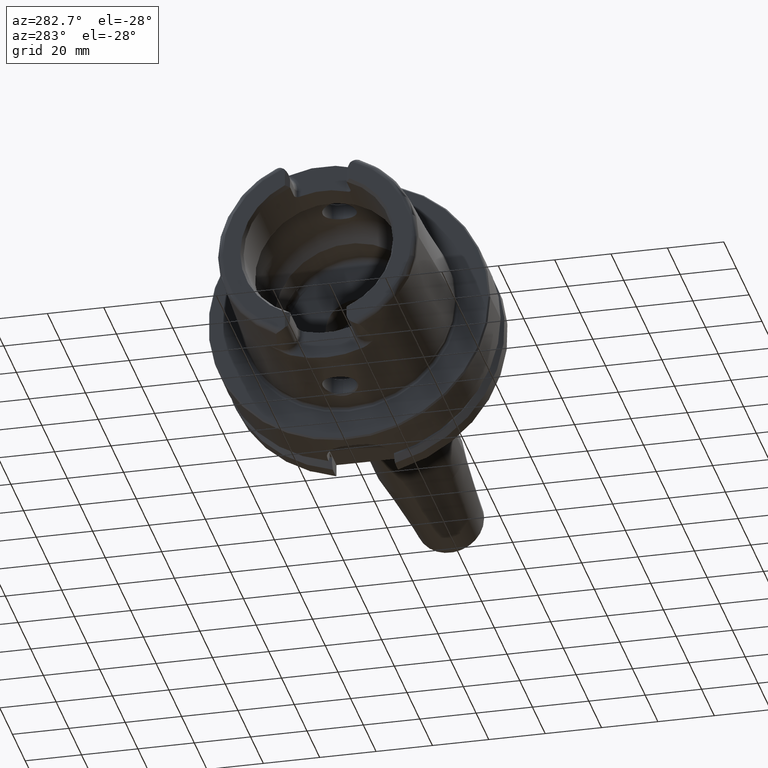
[diagram: clean part render]
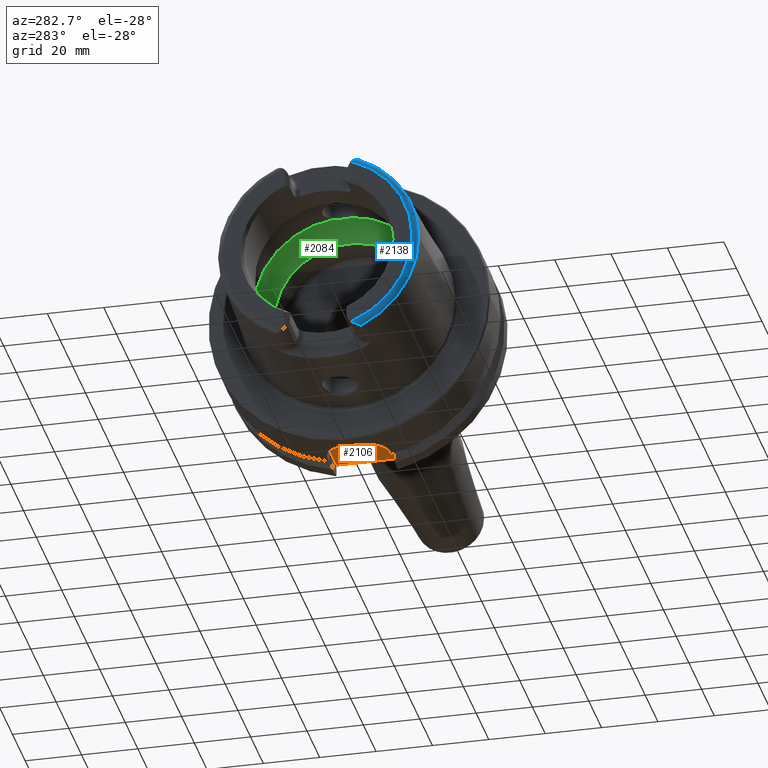
[diagram: same view with three faces highlighted in distinct colors, each labeled with its STEP entity id]
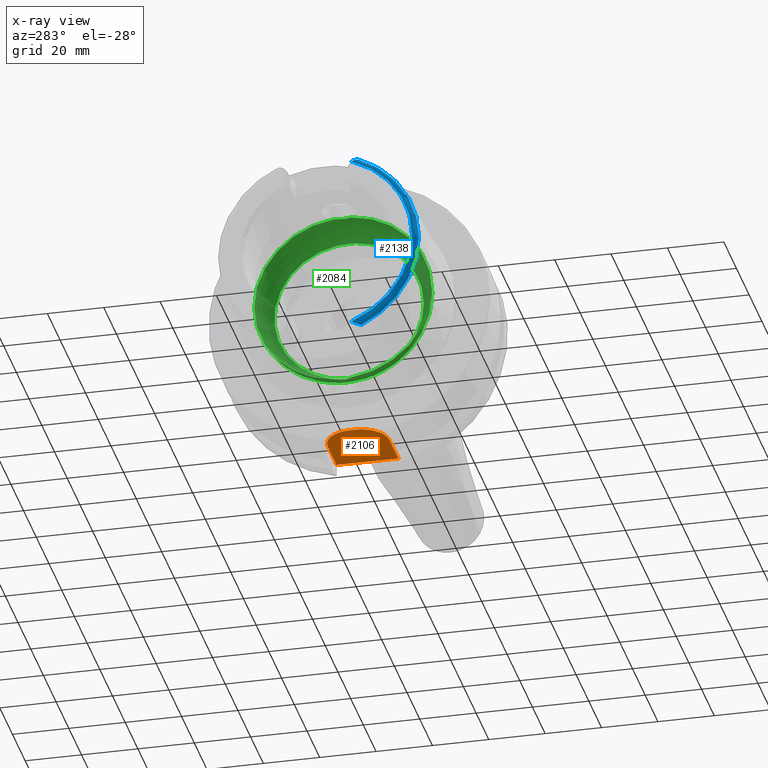
[diagram: x-ray of the same camera — body ghosted, the three highlighted faces saturated]
A machine part, auxiliary view with three faces highlighted in distinct colors.
The next image is the same camera in x-ray (body ghosted, the three faces saturated) — at least one of them is partly hidden behind the body in this view.
Their STEP definitions:

[orange] entity #2106 — the highlighted planar face has unit normal (0, 0, 1).
#120=PLANE('',#2342);
#276=FACE_OUTER_BOUND('',#410,.T.);
#410=EDGE_LOOP('',(#1733,#1734,#1735,#1736,#1737,#1738));
#486=LINE('',#3202,#594);
#542=LINE('',#4283,#650);
#554=LINE('',#4377,#662);
#556=LINE('',#4383,#664);
#594=VECTOR('',#2562,10.);
#650=VECTOR('',#2822,10.);
#662=VECTOR('',#2840,10.);
#664=VECTOR('',#2848,10.);
#771=CIRCLE('',#2337,10.);
#772=CIRCLE('',#2340,10.);
#859=VERTEX_POINT('',#3199);
#860=VERTEX_POINT('',#3201);
#985=VERTEX_POINT('',#4282);
#993=VERTEX_POINT('',#4323);
#994=VERTEX_POINT('',#4325);
#1003=VERTEX_POINT('',#4379);
#1083=EDGE_CURVE('',#859,#860,#486,.T.);
#1250=EDGE_CURVE('',#860,#985,#542,.T.);
#1261=EDGE_CURVE('',#993,#994,#771,.T.);
#1272=EDGE_CURVE('',#994,#859,#554,.T.);
#1273=EDGE_CURVE('',#985,#1003,#772,.T.);
#1275=EDGE_CURVE('',#1003,#993,#556,.T.);
#1733=ORIENTED_EDGE('',*,*,#1275,.F.);
#1734=ORIENTED_EDGE('',*,*,#1273,.F.);
#1735=ORIENTED_EDGE('',*,*,#1250,.F.);
#1736=ORIENTED_EDGE('',*,*,#1083,.F.);
#1737=ORIENTED_EDGE('',*,*,#1272,.F.);
#1738=ORIENTED_EDGE('',*,*,#1261,.F.);
#2106=ADVANCED_FACE('',(#276),#120,.F.);
#2337=AXIS2_PLACEMENT_3D('',#4326,#2831,#2832);
#2340=AXIS2_PLACEMENT_3D('',#4380,#2843,#2844);
#2342=AXIS2_PLACEMENT_3D('',#4384,#2849,#2850);
#2562=DIRECTION('',(0.,1.,0.));
#2822=DIRECTION('',(-1.,-1.58603289232165E-16,0.));
#2831=DIRECTION('center_axis',(0.,0.,1.));
#2832=DIRECTION('ref_axis',(-1.,-2.4980018054066E-16,0.));
#2840=DIRECTION('',(1.,1.58603289232165E-16,0.));
#2843=DIRECTION('center_axis',(0.,0.,1.));
#2844=DIRECTION('ref_axis',(-2.22044604925031E-16,1.,0.));
#2848=DIRECTION('',(0.,-1.,0.));
#2849=DIRECTION('center_axis',(0.,0.,1.));
#2850=DIRECTION('ref_axis',(1.,0.,0.));
#3199=CARTESIAN_POINT('',(29.,-11.,-44.));
#3201=CARTESIAN_POINT('',(29.,11.,-44.));
#3202=CARTESIAN_POINT('',(29.,-5.55111512312578E-16,-44.));
#4282=CARTESIAN_POINT('',(15.,11.,-44.));
#4283=CARTESIAN_POINT('',(29.,11.,-44.));
#4323=CARTESIAN_POINT('',(4.99999999999999,-1.00000000000001,-44.));
#4325=CARTESIAN_POINT('',(15.,-11.,-44.));
#4326=CARTESIAN_POINT('Origin',(15.,-1.,-44.));
#4377=CARTESIAN_POINT('',(15.,-11.,-44.));
#4379=CARTESIAN_POINT('',(4.99999999999999,0.999999999999997,-44.));
#4380=CARTESIAN_POINT('Origin',(15.,1.,-44.));
#4383=CARTESIAN_POINT('',(4.99999999999999,0.999999999999997,-44.));
#4384=CARTESIAN_POINT('Origin',(17.,-1.11022302462516E-15,-44.));

[blue] entity #2138 — the highlighted toroidal blend (fillet) surface has major radius 33.6002 mm and minor (blend) radius 2 mm.
#33=B_SPLINE_CURVE_WITH_KNOTS('',3,(#3332,#3333,#3334,#3335,#3336,#3337,
#3338,#3339,#3340,#3341,#3342,#3343),.UNSPECIFIED.,.F.,.F.,(4,2,2,2,2,4),
(-0.744571126726518,-0.701342830888641,-0.656522678464628,-0.531122919946975,
-0.406784567241786,-0.320835419118986),.UNSPECIFIED.);
#84=B_SPLINE_CURVE_WITH_KNOTS('',3,(#4559,#4560,#4561,#4562,#4563,#4564,
#4565,#4566,#4567,#4568,#4569,#4570),.UNSPECIFIED.,.F.,.F.,(4,2,2,2,2,4),
(-0.330531435638092,-0.267908000768824,-0.159978118105095,-0.0786368985358016,
-0.0319888850382436,0.),.UNSPECIFIED.);
#158=TOROIDAL_SURFACE('',#2401,33.6001839277785,2.);
#308=FACE_OUTER_BOUND('',#442,.T.);
#442=EDGE_LOOP('',(#1882,#1883,#1884,#1885,#1886));
#733=CIRCLE('',#2267,33.6001839277785);
#739=CIRCLE('',#2283,35.5976786130245);
#743=CIRCLE('',#2287,35.5976786130245);
#892=VERTEX_POINT('',#3313);
#893=VERTEX_POINT('',#3315);
#898=VERTEX_POINT('',#3331);
#913=VERTEX_POINT('',#3550);
#914=VERTEX_POINT('',#3552);
#1124=EDGE_CURVE('',#893,#892,#733,.T.);
#1132=EDGE_CURVE('',#898,#893,#33,.T.);
#1152=EDGE_CURVE('',#913,#914,#739,.T.);
#1165=EDGE_CURVE('',#898,#913,#743,.T.);
#1329=EDGE_CURVE('',#892,#914,#84,.T.);
#1882=ORIENTED_EDGE('',*,*,#1132,.T.);
#1883=ORIENTED_EDGE('',*,*,#1124,.T.);
#1884=ORIENTED_EDGE('',*,*,#1329,.T.);
#1885=ORIENTED_EDGE('',*,*,#1152,.F.);
#1886=ORIENTED_EDGE('',*,*,#1165,.F.);
#2138=ADVANCED_FACE('',(#308),#158,.T.);
#2267=AXIS2_PLACEMENT_3D('',#3316,#2646,#2647);
#2283=AXIS2_PLACEMENT_3D('',#3553,#2690,#2691);
#2287=AXIS2_PLACEMENT_3D('',#3680,#2698,#2699);
#2401=AXIS2_PLACEMENT_3D('',#4558,#2984,#2985);
#2646=DIRECTION('center_axis',(1.,0.,0.));
#2647=DIRECTION('ref_axis',(0.,0.,-1.));
#2690=DIRECTION('center_axis',(1.,0.,0.));
#2691=DIRECTION('ref_axis',(0.,0.,-1.));
#2698=DIRECTION('center_axis',(1.,0.,0.));
#2699=DIRECTION('ref_axis',(0.,0.,-1.));
#2984=DIRECTION('center_axis',(1.,0.,0.));
#2985=DIRECTION('ref_axis',(0.,0.,-1.));
#3313=CARTESIAN_POINT('',(-50.,-12.0743049948301,-31.355757348091));
#3315=CARTESIAN_POINT('',(-50.,-12.0743049948301,31.355757348091));
#3316=CARTESIAN_POINT('Origin',(-50.,0.,0.));
#3331=CARTESIAN_POINT('',(-48.1000748840304,-15.0787152148571,32.2463497175327));
#3332=CARTESIAN_POINT('Ctrl Pts',(-48.1000748840304,-15.0787152148571,32.2463497175327));
#3333=CARTESIAN_POINT('Ctrl Pts',(-48.2106037175751,-15.0644627457708,32.2469012894916));
#3334=CARTESIAN_POINT('Ctrl Pts',(-48.3154292138326,-15.0273539899824,32.2483385926998));
#3335=CARTESIAN_POINT('Ctrl Pts',(-48.5163157198425,-14.9224481921473,32.2501843906849));
#3336=CARTESIAN_POINT('Ctrl Pts',(-48.6121978837474,-14.8534224082598,32.2504380645671));
#3337=CARTESIAN_POINT('Ctrl Pts',(-48.945264184207,-14.5689466462258,32.2439376039327));
#3338=CARTESIAN_POINT('Ctrl Pts',(-49.1880723127852,-14.2607780319834,32.2227822574558));
#3339=CARTESIAN_POINT('Ctrl Pts',(-49.6101150709732,-13.5547183211213,32.0774653757186));
#3340=CARTESIAN_POINT('Ctrl Pts',(-49.7793847368059,-13.1765954395989,31.957165019384));
#3341=CARTESIAN_POINT('Ctrl Pts',(-49.9574602860506,-12.5580264083439,31.6658578550016));
#3342=CARTESIAN_POINT('Ctrl Pts',(-50.,-12.3091419271059,31.5216553492714));
#3343=CARTESIAN_POINT('Ctrl Pts',(-50.,-12.0743049948301,31.355757348091));
#3550=CARTESIAN_POINT('',(-48.1000748840304,-35.5976786130245,-4.35945831705167E-15));
#3552=CARTESIAN_POINT('',(-48.1000748840304,-15.0787152148571,-32.2463497175327));
#3553=CARTESIAN_POINT('Origin',(-48.1000748840304,0.,0.));
#3680=CARTESIAN_POINT('Origin',(-48.1000748840304,0.,0.));
#4558=CARTESIAN_POINT('Origin',(-48.,0.,0.));
#4559=CARTESIAN_POINT('Ctrl Pts',(-50.,-12.0743049948301,-31.355757348091));
#4560=CARTESIAN_POINT('Ctrl Pts',(-50.,-12.2858381230511,-31.5051926299064));
#4561=CARTESIAN_POINT('Ctrl Pts',(-49.9653696826563,-12.5170331398669,-31.6430588255455));
#4562=CARTESIAN_POINT('Ctrl Pts',(-49.7810065498998,-13.1911222585011,-31.9692156023964));
#4563=CARTESIAN_POINT('Ctrl Pts',(-49.5806767805337,-13.6194685503754,-32.0969374367804));
#4564=CARTESIAN_POINT('Ctrl Pts',(-49.1716377200869,-14.2730899346346,-32.2192774131036));
#4565=CARTESIAN_POINT('Ctrl Pts',(-48.9774936618895,-14.5201969661755,-32.2395201073332));
#4566=CARTESIAN_POINT('Ctrl Pts',(-48.6675943633755,-14.8125911006811,-32.2505512851489));
#4567=CARTESIAN_POINT('Ctrl Pts',(-48.5398374959924,-14.912197389574,-32.2504544601106));
#4568=CARTESIAN_POINT('Ctrl Pts',(-48.3063803700173,-15.0305209025154,-32.2482139663407));
#4569=CARTESIAN_POINT('Ctrl Pts',(-48.2058276135777,-15.0650786147019,-32.2468774553032));
#4570=CARTESIAN_POINT('Ctrl Pts',(-48.1000748840304,-15.0787152148571,-32.2463497175327));

[green] entity #2084 — the highlighted toroidal blend (fillet) surface has major radius 19.5 mm and minor (blend) radius 12 mm.
#48=B_SPLINE_CURVE_WITH_KNOTS('',3,(#3712,#3713,#3714,#3715,#3716,#3717,
#3718,#3719,#3720,#3721),.UNSPECIFIED.,.F.,.F.,(4,2,2,2,4),(-0.606113644645353,
-0.532141714710631,-0.407956541554012,-0.344441109025195,-0.303157612487306),
 .UNSPECIFIED.);
#50=B_SPLINE_CURVE_WITH_KNOTS('',3,(#3754,#3755,#3756,#3757,#3758,#3759,
#3760,#3761,#3762,#3763),.UNSPECIFIED.,.F.,.F.,(4,2,2,2,4),(-0.303157612487306,
-0.297161587155601,-0.247817233363509,-0.174446982686599,0.),
 .UNSPECIFIED.);
#53=B_SPLINE_CURVE_WITH_KNOTS('',3,(#3904,#3905,#3906,#3907,#3908,#3909,
#3910,#3911,#3912,#3913),.UNSPECIFIED.,.F.,.F.,(4,2,2,2,4),(-0.606113644645388,
-0.532141714710621,-0.407956541553997,-0.344441109025146,-0.303157612487227),
 .UNSPECIFIED.);
#55=B_SPLINE_CURVE_WITH_KNOTS('',3,(#3946,#3947,#3948,#3949,#3950,#3951,
#3952,#3953,#3954,#3955),.UNSPECIFIED.,.F.,.F.,(4,2,2,2,4),(-0.303157612487227,
-0.297161587155532,-0.247817233363497,-0.174446982686607,0.),
 .UNSPECIFIED.);
#143=TOROIDAL_SURFACE('',#2296,19.5,12.);
#254=FACE_OUTER_BOUND('',#387,.T.);
#387=EDGE_LOOP('',(#1587,#1588,#1589,#1590,#1591,#1592,#1593,#1594,#1595,
#1596,#1597));
#744=CIRCLE('',#2291,31.5);
#747=CIRCLE('',#2294,31.5);
#748=CIRCLE('',#2295,31.5);
#749=CIRCLE('',#2297,26.5);
#750=CIRCLE('',#2298,26.5);
#751=CIRCLE('',#2299,12.);
#925=VERTEX_POINT('',#3709);
#926=VERTEX_POINT('',#3711);
#927=VERTEX_POINT('',#3722);
#930=VERTEX_POINT('',#3902);
#931=VERTEX_POINT('',#3903);
#932=VERTEX_POINT('',#3914);
#933=VERTEX_POINT('',#3958);
#936=VERTEX_POINT('',#3968);
#937=VERTEX_POINT('',#3969);
#1168=EDGE_CURVE('',#926,#925,#48,.T.);
#1170=EDGE_CURVE('',#925,#927,#50,.T.);
#1174=EDGE_CURVE('',#930,#931,#53,.T.);
#1176=EDGE_CURVE('',#931,#932,#55,.T.);
#1178=EDGE_CURVE('',#933,#930,#744,.T.);
#1182=EDGE_CURVE('',#927,#933,#747,.T.);
#1183=EDGE_CURVE('',#932,#926,#748,.T.);
#1184=EDGE_CURVE('',#936,#937,#749,.T.);
#1185=EDGE_CURVE('',#937,#936,#750,.T.);
#1186=EDGE_CURVE('',#937,#925,#751,.T.);
#1587=ORIENTED_EDGE('',*,*,#1184,.F.);
#1588=ORIENTED_EDGE('',*,*,#1185,.F.);
#1589=ORIENTED_EDGE('',*,*,#1186,.T.);
#1590=ORIENTED_EDGE('',*,*,#1170,.T.);
#1591=ORIENTED_EDGE('',*,*,#1182,.T.);
#1592=ORIENTED_EDGE('',*,*,#1178,.T.);
#1593=ORIENTED_EDGE('',*,*,#1174,.T.);
#1594=ORIENTED_EDGE('',*,*,#1176,.T.);
#1595=ORIENTED_EDGE('',*,*,#1183,.T.);
#1596=ORIENTED_EDGE('',*,*,#1168,.T.);
#1597=ORIENTED_EDGE('',*,*,#1186,.F.);
#2084=ADVANCED_FACE('',(#254),#143,.F.);
#2291=AXIS2_PLACEMENT_3D('',#3959,#2709,#2710);
#2294=AXIS2_PLACEMENT_3D('',#3965,#2716,#2717);
#2295=AXIS2_PLACEMENT_3D('',#3966,#2718,#2719);
#2296=AXIS2_PLACEMENT_3D('',#3967,#2720,#2721);
#2297=AXIS2_PLACEMENT_3D('',#3970,#2722,#2723);
#2298=AXIS2_PLACEMENT_3D('',#3971,#2724,#2725);
#2299=AXIS2_PLACEMENT_3D('',#3972,#2726,#2727);
#2709=DIRECTION('center_axis',(-1.,0.,0.));
#2710=DIRECTION('ref_axis',(0.,0.,1.));
#2716=DIRECTION('center_axis',(-1.,0.,0.));
#2717=DIRECTION('ref_axis',(0.,0.,1.));
#2718=DIRECTION('center_axis',(-1.,0.,0.));
#2719=DIRECTION('ref_axis',(0.,0.,1.));
#2720=DIRECTION('center_axis',(-1.,0.,0.));
#2721=DIRECTION('ref_axis',(0.,0.,1.));
#2722=DIRECTION('center_axis',(-1.,0.,0.));
#2723=DIRECTION('ref_axis',(0.,0.,1.));
#2724=DIRECTION('center_axis',(-1.,0.,0.));
#2725=DIRECTION('ref_axis',(0.,0.,1.));
#2726=DIRECTION('center_axis',(0.,1.,-1.22464679914735E-16));
#2727=DIRECTION('ref_axis',(0.,-1.22464679914735E-16,-1.));
#3709=CARTESIAN_POINT('',(-9.,8.53116613017712E-16,-31.4767398822284));
#3711=CARTESIAN_POINT('',(-9.74679434480896,2.89893607109041,-31.3663222207471));
#3712=CARTESIAN_POINT('Ctrl Pts',(-9.74679434480898,2.89893607109041,-31.3663222207471));
#3713=CARTESIAN_POINT('Ctrl Pts',(-9.62803941549252,2.68373847757038,-31.3862111979079));
#3714=CARTESIAN_POINT('Ctrl Pts',(-9.52250794022164,2.46123932380009,-31.4027818190648));
#3715=CARTESIAN_POINT('Ctrl Pts',(-9.27707880675082,1.84905941644996,-31.4398086116956));
#3716=CARTESIAN_POINT('Ctrl Pts',(-9.16318715371328,1.45014848778478,-31.4552463037839));
#3717=CARTESIAN_POINT('Ctrl Pts',(-9.05448554629564,0.83406948853474,-31.4697090180031));
#3718=CARTESIAN_POINT('Ctrl Pts',(-9.02875508102837,0.623753972628784,-31.4730355369691));
#3719=CARTESIAN_POINT('Ctrl Pts',(-9.00473516300901,0.275210595137741,-31.4761342948647));
#3720=CARTESIAN_POINT('Ctrl Pts',(-9.,0.13762179988616,-31.4767398822284));
#3721=CARTESIAN_POINT('Ctrl Pts',(-9.,9.71445146547012E-16,-31.4767398822284));
#3722=CARTESIAN_POINT('',(-9.74679434480896,-2.89893607109041,-31.3663222207471));
#3754=CARTESIAN_POINT('Ctrl Pts',(-9.,9.83483832277069E-16,-31.4767398822284));
#3755=CARTESIAN_POINT('Ctrl Pts',(-9.,-0.0199882245331354,-31.4767398822284));
#3756=CARTESIAN_POINT('Ctrl Pts',(-9.00009988237686,-0.0399771452902417,
-31.4767270717783));
#3757=CARTESIAN_POINT('Ctrl Pts',(-9.00194380057016,-0.224464346212316,
-31.4764905359115));
#3758=CARTESIAN_POINT('Ctrl Pts',(-9.01035297969853,-0.388827878343727,
-31.4754151841588));
#3759=CARTESIAN_POINT('Ctrl Pts',(-9.0480310904853,-0.796171644009328,-31.4705320701686));
#3760=CARTESIAN_POINT('Ctrl Pts',(-9.08543037238412,-1.03809779370842,-31.4656619259797));
#3761=CARTESIAN_POINT('Ctrl Pts',(-9.26119500081336,-1.84501079512327,-31.441850680052));
#3762=CARTESIAN_POINT('Ctrl Pts',(-9.4667592962906,-2.39148034786879,-31.4132222586341));
#3763=CARTESIAN_POINT('Ctrl Pts',(-9.74679434480898,-2.89893607109041,-31.3663222207471));
#3902=CARTESIAN_POINT('',(-9.74679434480896,-2.89893607109042,31.3663222207471));
#3903=CARTESIAN_POINT('',(-8.99999999999999,7.8372767397864E-16,31.4767398822284));
#3904=CARTESIAN_POINT('Ctrl Pts',(-9.74679434480898,-2.89893607109042,31.3663222207471));
#3905=CARTESIAN_POINT('Ctrl Pts',(-9.62803941549257,-2.6837384775705,31.3862111979079));
#3906=CARTESIAN_POINT('Ctrl Pts',(-9.52250794022172,-2.46123932380032,31.4027818190648));
#3907=CARTESIAN_POINT('Ctrl Pts',(-9.27707880675083,-1.84905941645004,31.4398086116956));
#3908=CARTESIAN_POINT('Ctrl Pts',(-9.16318715371328,-1.45014848778485,31.4552463037839));
#3909=CARTESIAN_POINT('Ctrl Pts',(-9.05448554629561,-0.834069488534672,
31.4697090180031));
#3910=CARTESIAN_POINT('Ctrl Pts',(-9.02875508102836,-0.623753972628598,
31.4730355369691));
#3911=CARTESIAN_POINT('Ctrl Pts',(-9.00473516300902,-0.275210595137865,
31.4761342948647));
#3912=CARTESIAN_POINT('Ctrl Pts',(-8.99999999999999,-0.137621799886392,
31.4767398822284));
#3913=CARTESIAN_POINT('Ctrl Pts',(-8.99999999999999,9.0205620750794E-16,
31.4767398822284));
#3914=CARTESIAN_POINT('',(-9.74679434480896,2.89893607109042,31.3663222207471));
#3946=CARTESIAN_POINT('Ctrl Pts',(-8.99999999999999,8.7920239009422E-16,
31.4767398822284));
#3947=CARTESIAN_POINT('Ctrl Pts',(-8.99999999999999,0.0199882245331231,
31.4767398822284));
#3948=CARTESIAN_POINT('Ctrl Pts',(-9.00009988237684,0.0399771452902225,
31.4767270717783));
#3949=CARTESIAN_POINT('Ctrl Pts',(-9.00194380057014,0.224464346212396,31.4764905359115));
#3950=CARTESIAN_POINT('Ctrl Pts',(-9.01035297969852,0.388827878343765,31.4754151841588));
#3951=CARTESIAN_POINT('Ctrl Pts',(-9.0480310904853,0.79617164400948,31.4705320701686));
#3952=CARTESIAN_POINT('Ctrl Pts',(-9.08543037238414,1.03809779370849,31.4656619259797));
#3953=CARTESIAN_POINT('Ctrl Pts',(-9.26119500081334,1.84501079512323,31.441850680052));
#3954=CARTESIAN_POINT('Ctrl Pts',(-9.46675929629059,2.39148034786878,31.4132222586341));
#3955=CARTESIAN_POINT('Ctrl Pts',(-9.74679434480898,2.89893607109043,31.3663222207471));
#3958=CARTESIAN_POINT('',(-9.74679434480896,-31.5,3.85763741731416E-15));
#3959=CARTESIAN_POINT('Origin',(-9.74679434480896,0.,0.));
#3965=CARTESIAN_POINT('Origin',(-9.74679434480896,0.,0.));
#3966=CARTESIAN_POINT('Origin',(-9.74679434480896,0.,0.));
#3967=CARTESIAN_POINT('Origin',(-9.74679434480896,0.,0.));
#3968=CARTESIAN_POINT('',(0.,-26.5,3.24531401774049E-15));
#3969=CARTESIAN_POINT('',(0.,-3.24531401774049E-15,-26.5));
#3970=CARTESIAN_POINT('Origin',(0.,0.,0.));
#3971=CARTESIAN_POINT('Origin',(0.,0.,0.));
#3972=CARTESIAN_POINT('Origin',(-9.74679434480896,-2.38806125833734E-15,
-19.5));